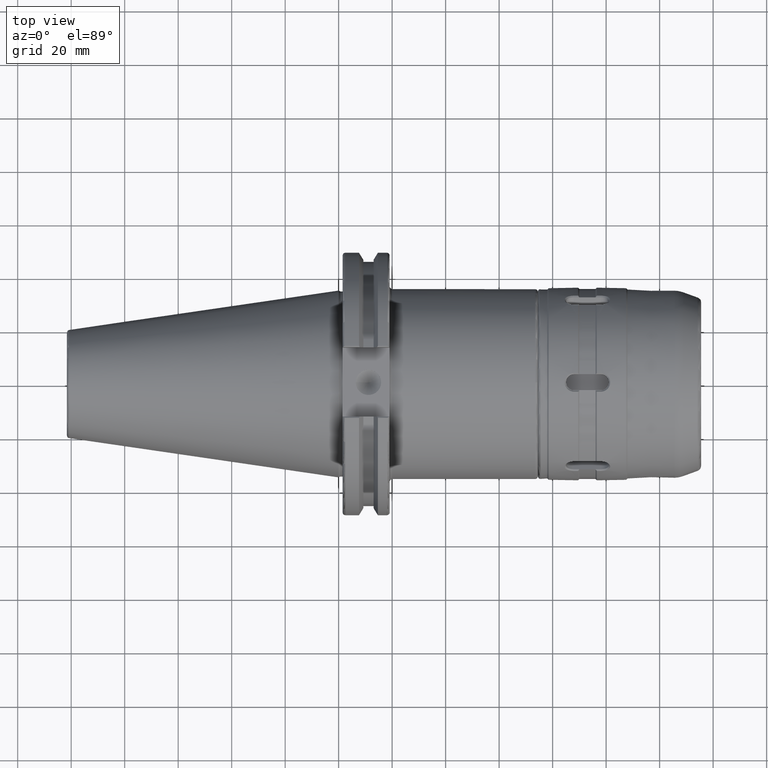
[diagram: clean part render]
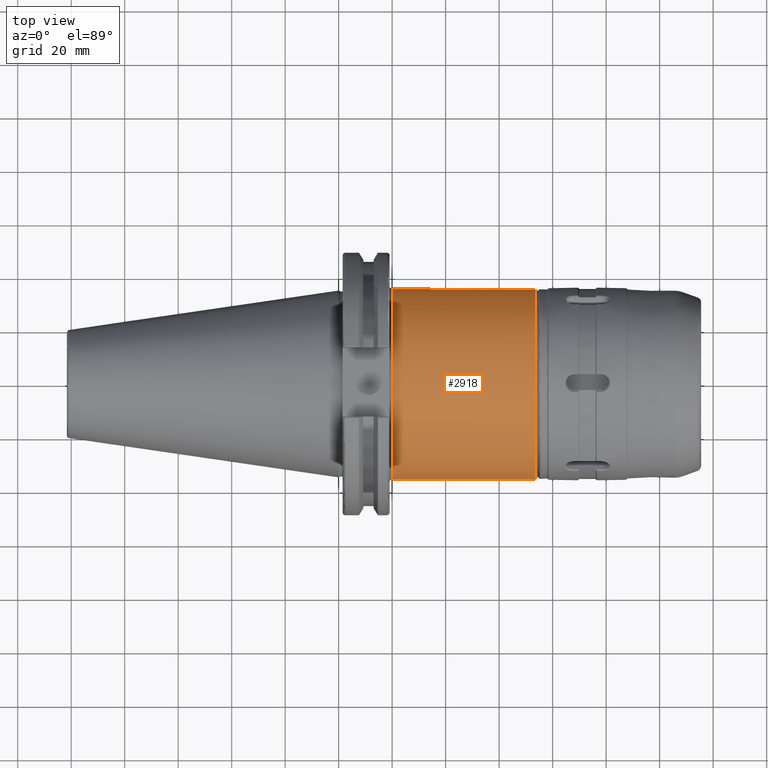
[diagram: same view with one face highlighted and labeled with its STEP entity id]
A machine part, top view. The second image highlights one B-rep face of the part: STEP entity #2918.
In plain terms, the highlighted cylindrical surface (bore or boss wall) has radius 35.5 mm, axis along (1, 0, 0).
Its self-contained STEP definition (entity closure, byte-faithful):
#223=LINE('',#4342,#449);
#224=LINE('',#4345,#450);
#225=LINE('',#4347,#451);
#449=VECTOR('',#3489,35.5);
#450=VECTOR('',#3492,10.);
#451=VECTOR('',#3493,10.);
#676=FACE_OUTER_BOUND('',#854,.T.);
#854=EDGE_LOOP('',(#1974,#1975,#1976,#1977,#1978,#1979,#1980,#1981,#1982));
#1049=CIRCLE('',#3173,35.5);
#1050=CIRCLE('',#3174,35.5);
#1051=CIRCLE('',#3175,35.5);
#1052=CIRCLE('',#3176,35.5);
#1186=B_SPLINE_CURVE_WITH_KNOTS('',3,(#4326,#4327,#4328,#4329,#4330,#4331,
#4332,#4333,#4334,#4335),.UNSPECIFIED.,.F.,.F.,(4,2,2,2,4),(5.54900217882639,
5.66698055254547,5.9132835211067,6.15958648966794,6.27756486338702),
 .UNSPECIFIED.);
#1231=VERTEX_POINT('',#4324);
#1232=VERTEX_POINT('',#4325);
#1233=VERTEX_POINT('',#4338);
#1234=VERTEX_POINT('',#4339);
#1235=VERTEX_POINT('',#4341);
#1236=VERTEX_POINT('',#4343);
#1237=VERTEX_POINT('',#4346);
#1521=EDGE_CURVE('',#1231,#1232,#1186,.T.);
#1523=EDGE_CURVE('',#1233,#1234,#1049,.T.);
#1524=EDGE_CURVE('',#1233,#1235,#223,.T.);
#1525=EDGE_CURVE('',#1236,#1235,#1050,.T.);
#1526=EDGE_CURVE('',#1236,#1231,#224,.T.);
#1527=EDGE_CURVE('',#1232,#1237,#225,.T.);
#1528=EDGE_CURVE('',#1235,#1237,#1051,.T.);
#1529=EDGE_CURVE('',#1234,#1233,#1052,.T.);
#1974=ORIENTED_EDGE('',*,*,#1523,.F.);
#1975=ORIENTED_EDGE('',*,*,#1524,.T.);
#1976=ORIENTED_EDGE('',*,*,#1525,.F.);
#1977=ORIENTED_EDGE('',*,*,#1526,.T.);
#1978=ORIENTED_EDGE('',*,*,#1521,.T.);
#1979=ORIENTED_EDGE('',*,*,#1527,.T.);
#1980=ORIENTED_EDGE('',*,*,#1528,.F.);
#1981=ORIENTED_EDGE('',*,*,#1524,.F.);
#1982=ORIENTED_EDGE('',*,*,#1529,.F.);
#2875=CYLINDRICAL_SURFACE('',#3172,35.5);
#2918=ADVANCED_FACE('',(#676),#2875,.T.);
#3172=AXIS2_PLACEMENT_3D('',#4337,#3485,#3486);
#3173=AXIS2_PLACEMENT_3D('',#4340,#3487,#3488);
#3174=AXIS2_PLACEMENT_3D('',#4344,#3490,#3491);
#3175=AXIS2_PLACEMENT_3D('',#4348,#3494,#3495);
#3176=AXIS2_PLACEMENT_3D('',#4349,#3496,#3497);
#3485=DIRECTION('center_axis',(1.,0.,0.));
#3486=DIRECTION('ref_axis',(0.,1.,0.));
#3487=DIRECTION('center_axis',(1.,0.,0.));
#3488=DIRECTION('ref_axis',(0.,-1.,1.83697019872103E-16));
#3489=DIRECTION('',(-1.,0.,0.));
#3490=DIRECTION('center_axis',(-1.,0.,0.));
#3491=DIRECTION('ref_axis',(0.,-1.60812264967664E-16,1.));
#3492=DIRECTION('',(1.,0.,0.));
#3493=DIRECTION('',(-1.,0.,0.));
#3494=DIRECTION('center_axis',(-1.,0.,0.));
#3495=DIRECTION('ref_axis',(0.,-1.60812264967664E-16,1.));
#3496=DIRECTION('center_axis',(1.,0.,0.));
#3497=DIRECTION('ref_axis',(0.,-1.,1.83697019872103E-16));
#4324=CARTESIAN_POINT('',(32.4583091515323,-3.70626010959843,-35.306));
#4325=CARTESIAN_POINT('',(32.4583091515323,3.70626010959843,-35.306));
#4326=CARTESIAN_POINT('Ctrl Pts',(32.4583091515323,-3.70626010959843,-35.306));
#4327=CARTESIAN_POINT('Ctrl Pts',(32.5765464534168,-3.3104095886848,-35.3475545514934));
#4328=CARTESIAN_POINT('Ctrl Pts',(32.6755422753027,-2.90968736890519,-35.3828535712589));
#4329=CARTESIAN_POINT('Ctrl Pts',(32.9206621117689,-1.66769572949178,-35.4707980068986));
#4330=CARTESIAN_POINT('Ctrl Pts',(33.,-0.821009895204128,-35.5));
#4331=CARTESIAN_POINT('Ctrl Pts',(33.,0.821009895204115,-35.5));
#4332=CARTESIAN_POINT('Ctrl Pts',(32.9206621117689,1.66769572949177,-35.4707980068986));
#4333=CARTESIAN_POINT('Ctrl Pts',(32.6755422753027,2.90968736890518,-35.3828535712589));
#4334=CARTESIAN_POINT('Ctrl Pts',(32.5765464534168,3.3104095886848,-35.3475545514934));
#4335=CARTESIAN_POINT('Ctrl Pts',(32.4583091515323,3.70626010959843,-35.306));
#4337=CARTESIAN_POINT('Origin',(46.775,0.,0.));
#4338=CARTESIAN_POINT('',(73.5,-35.5,-4.3474961369731E-15));
#4339=CARTESIAN_POINT('',(73.5,-4.3474961369731E-15,35.5));
#4340=CARTESIAN_POINT('Origin',(73.5,0.,0.));
#4341=CARTESIAN_POINT('',(20.05,-35.5,-4.3474961369731E-15));
#4342=CARTESIAN_POINT('',(46.775,-35.5,-4.3474961369731E-15));
#4343=CARTESIAN_POINT('',(20.05,-3.70626010959843,-35.306));
#4344=CARTESIAN_POINT('Origin',(20.05,0.,0.));
#4345=CARTESIAN_POINT('',(46.775,-3.70626010959843,-35.306));
#4346=CARTESIAN_POINT('',(20.05,3.70626010959843,-35.306));
#4347=CARTESIAN_POINT('',(46.775,3.70626010959843,-35.306));
#4348=CARTESIAN_POINT('Origin',(20.05,0.,0.));
#4349=CARTESIAN_POINT('Origin',(73.5,0.,0.));